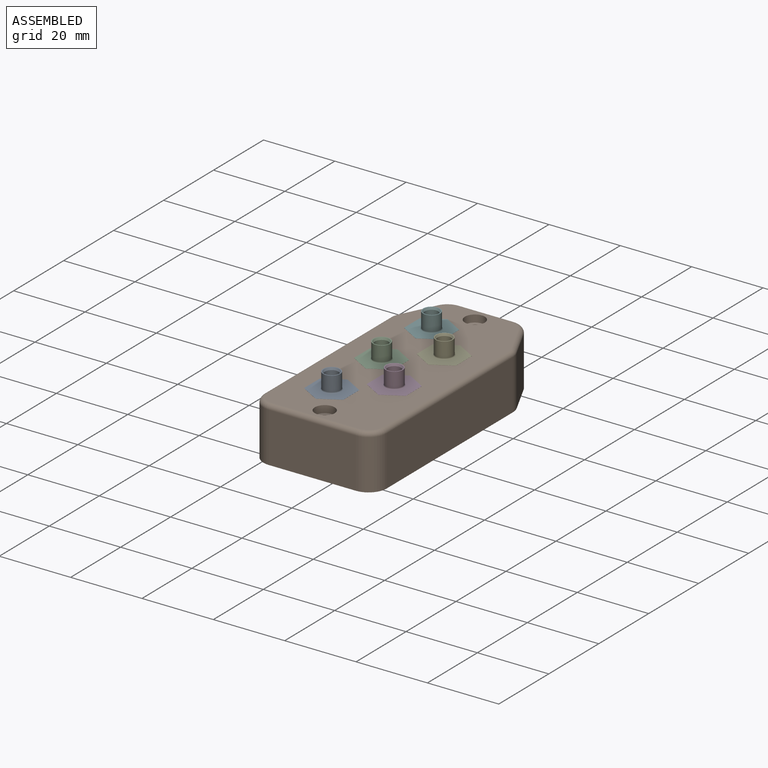
[diagram: assembled view]
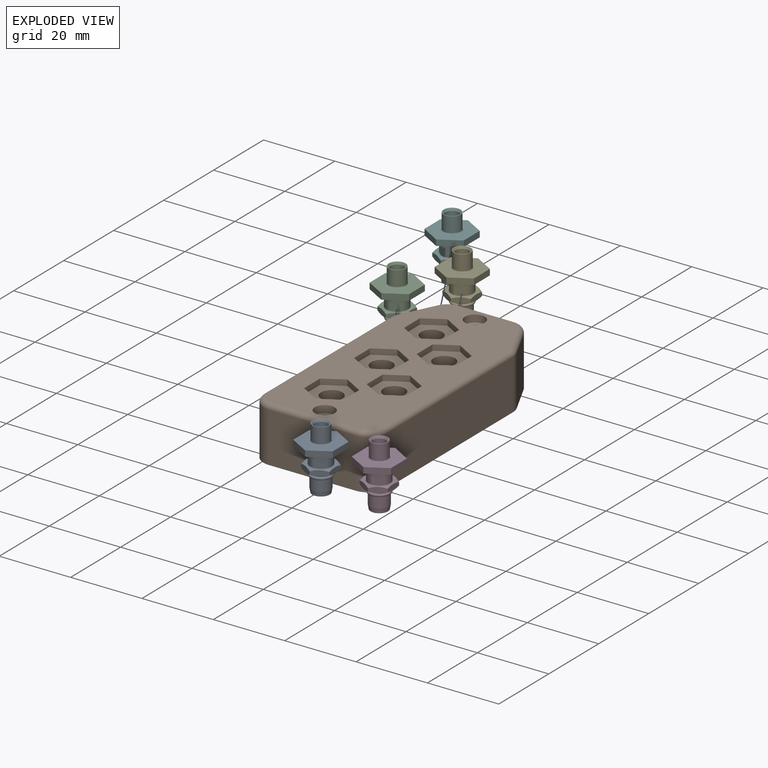
[diagram: exploded view]
GUIDED TOUR — MATED ASSEMBLY (Onshape document 641555b6fe72f07254d91e48, AutoMate assembly 641555b6fe72f07254d91e48_e81df381b4b180643ff3d9d4_b2d1536dae4446948ffe84b7_default)

This assembly has 6 components, labeled P0..P5 below (a component is one placed occurrence of a part; the same part can appear more than once), held together by 5 mates. A mate is a constraint between two components; its type names the relative motion it leaves free:
  PLANAR — leaves sliding in the plane through the listed point (normal = the listed direction) and rotation about that normal free.
Axis/direction vectors are unit vectors and 'through' points are millimeter coordinates, both in the assembly's world frame.

MATES
  1. PLANAR "Planar 5": P4 <-> P1, direction (-0.500, 0.866, 0.000) through (18.50, 43.97, 24.51) mm
  2. PLANAR "Planar 1": P5 <-> P1, direction (-0.500, 0.866, 0.000) through (7.96, 53.97, 24.51) mm
  3. PLANAR "Planar 2": P2 <-> P1, direction (-0.500, 0.866, 0.000) through (7.96, 33.97, 24.51) mm
  4. PLANAR "Planar 3": P0 <-> P1, direction (-0.500, 0.866, 0.000) through (7.96, 13.97, 24.51) mm
  5. PLANAR "Planar 4": P3 <-> P1, direction (-0.500, 0.866, 0.000) through (18.50, 23.97, 24.51) mm

ASSEMBLY ORDER
  1. P1 — the base component [order heuristic]
  2. P0 [order heuristic]
  3. P2 [order heuristic]
  4. P3 [order heuristic]
  5. P4 [order heuristic]
  6. P5 [order heuristic]
Order-tag legend:
  [order heuristic] — this assembly is geometrically interlocked (no collision-free removal order exists), so components are listed in mate-graph order; insertion feasibility is not verified.

Of the 6 components, 1 carries the full construction recipe — the FeatureScript program that regenerates the part's solid from scratch; the rest are supplied as boundary geometry only.
Each toured component is shown spotlighted twice — in the assembled view, then in the exploded view, where a leader line traces a displaced component back to its assembled socket (saturated green if recipe-attached, orange if geometry-only; every other component desaturated gray) — followed by its recipe or geometry summary and the mates that hold it.
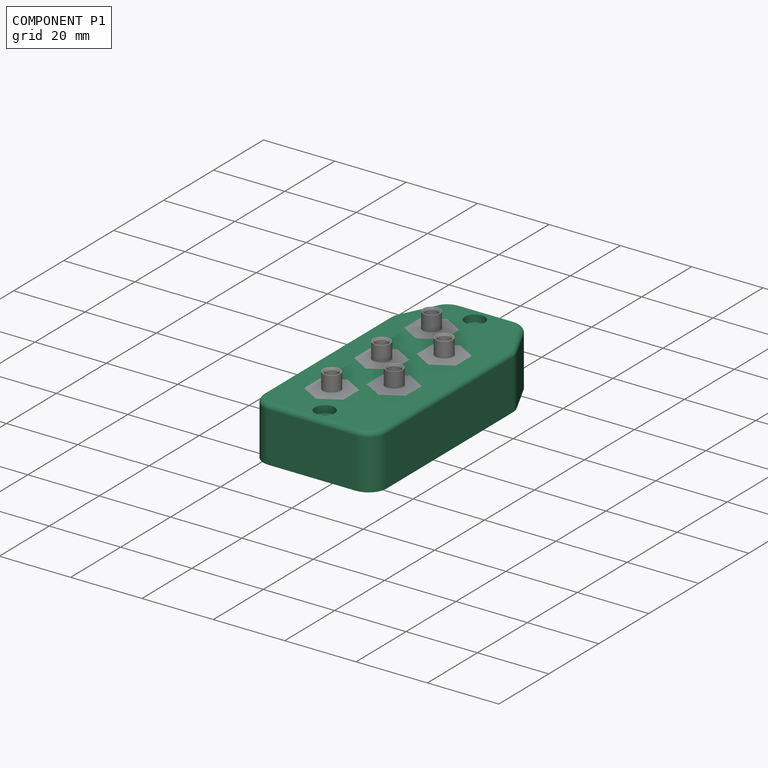
[diagram: component P1 — assembled]
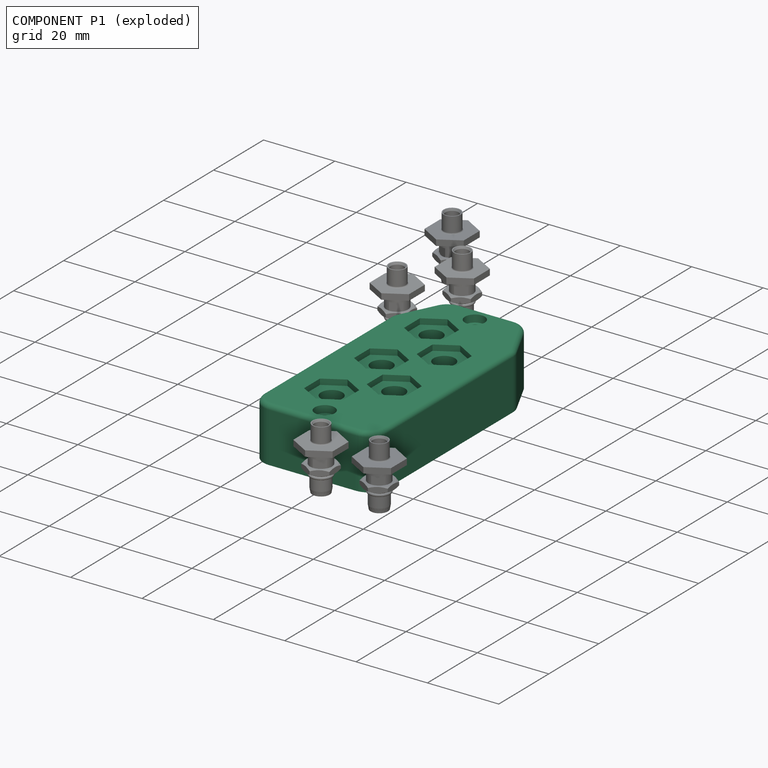
[diagram: component P1 — exploded]
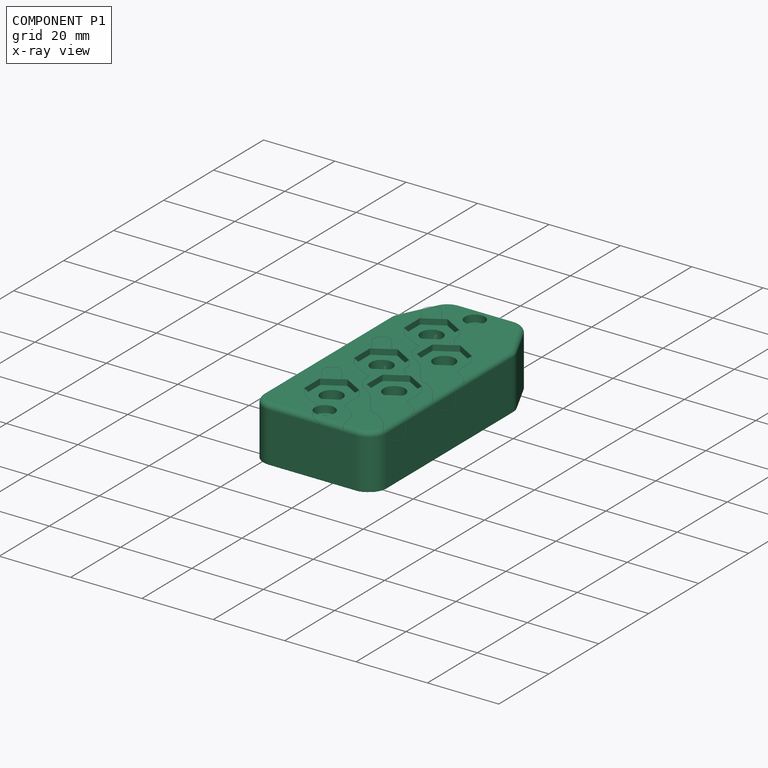
[diagram: component P1 — x-ray view]
COMPONENT P1 — recipe-attached (CADFS 00218131, mesh-verified: the recipe's output STEP matches this component's geometry to below the mesh-comparison resolution (tessellation chordal tolerance ~0.119 mm)).
Held by: PLANAR mate "Planar 5" to P4; PLANAR mate "Planar 1" to P5; PLANAR mate "Planar 2" to P2; PLANAR mate "Planar 3" to P0; PLANAR mate "Planar 4" to P3.
Construction recipe (FeatureScript — the CAD program that rebuilds this solid; sketch coordinates are in the units given by the * unit suffixes, e.g. mm):

FeatureScript 1511;
import(path : "onshape/std/geometry.fs", version : "1511.0");
import(path : "onshape/std/common.fs", version : "1511.0");
const mm = millimeter;
const VERTEX = EntityType.VERTEX;
const EDGE = EntityType.EDGE;
const FACE = EntityType.FACE;
const BODY = EntityType.BODY;
function v(x, y){return vector(x, y);}
function OD(order){return orderDisambiguation(order);}
function OSD(set){return originalSetDisambiguation(set);}
function TD(topology){return topologyDisambiguation(topology);}
function TDD(query){return trueDependencyDisambiguation(query);}
function sQuery(a, b, c) {return sketchEntityQuery(a, b, c);}

annotation { "Feature Type Name" : "Feature", "Feature Type Description" : "" }
export const myFeature = defineFeature(function(context is Context, id is Id, definition is map)
    precondition{}
    {
        {
            var Q0;
            Q0=qCreatedBy(makeId("Top.planeOp"),FACE);
            var sketch = newSketch(context, id + "F0", { "sketchPlane" : qUnion([Q0])});
            skLineSegment(sketch, "E0", {"start": v(0, 0) * mm, "end": v(0, 56.78) * mm});
            skLineSegment(sketch, "E1", {"start": v(0, 56.78) * mm, "end": v(6.48, 70) * mm});
            skLineSegment(sketch, "E2", {"start": v(6.48, 70) * mm, "end": v(28.07, 70) * mm});
            skLineSegment(sketch, "E3", {"start": v(28.07, 70) * mm, "end": v(34.54, 56.78) * mm});
            skLineSegment(sketch, "E4", {"start": v(34.54, 56.78) * mm, "end": v(34.54, 0) * mm});
            skLineSegment(sketch, "E5", {"start": v(34.54, 0) * mm, "end": v(0, 0) * mm});
            skLineSegment(sketch, "E6", {"start": v(17.27, 70) * mm, "end": v(17.27, 0) * mm, "construction": true});
            skCircle(sketch, "E7", {"center": v(17.27, 65.05) * mm, "radius": 1.78 * mm});
            skCircle(sketch, "E8", {"center": v(17.27, 4.95) * mm, "radius": 1.78 * mm});
            skSolve(sketch);
        }
        {
            var Q0;
            Q0=makeQuery(id+"F0.imprint","IMPRINT",FACE,{"disambiguationData":[TD([[makeQuery(id+"F0.imprint","IMPRINT",EDGE,{"derivedFrom":sQuery(id+"F0.wireOp",EDGE,"E0")}),-1.0]])]});
            extrude(context, id + "F1", {"entities" : qUnion([Q0]), "depth" : 15.24 * mm});
        }
        {
            var Q0;
            Q0=makeQuery(id+"F1.opExtrude","CAP_FACE",FACE,{"disambiguationData":[OSD([sQuery(id+"F0.wireOp",EDGE,"E0"),sQuery(id+"F0.wireOp",EDGE,"E1"),sQuery(id+"F0.wireOp",EDGE,"E2"),sQuery(id+"F0.wireOp",EDGE,"E3"),sQuery(id+"F0.wireOp",EDGE,"E4"),sQuery(id+"F0.wireOp",EDGE,"E5"),sQuery(id+"F0.wireOp",EDGE,"E7"),sQuery(id+"F0.wireOp",EDGE,"E8")])],"isStart":true});
            var sketch = newSketch(context, id + "F2", { "sketchPlane" : qUnion([Q0])});
            skLineSegment(sketch, "E9.0", {"start": v(32.26, -56.25) * mm, "end": v(32.26, -2.29) * mm});
            skLineSegment(sketch, "E9.1", {"start": v(2.29, -2.29) * mm, "end": v(2.29, -56.25) * mm});
            skLineSegment(sketch, "E9.2", {"start": v(2.29, -56.25) * mm, "end": v(7.9, -67.71) * mm});
            skLineSegment(sketch, "E9.3", {"start": v(32.26, -2.29) * mm, "end": v(22.99, -2.29) * mm});
            skLineSegment(sketch, "E9.4", {"start": v(7.9, -67.71) * mm, "end": v(11.56, -67.71) * mm});
            skLineSegment(sketch, "E9.5", {"start": v(26.64, -67.71) * mm, "end": v(32.26, -56.25) * mm});
            skArc(sketch, "E10.0", {"start": v(14.22, -4.95) * mm, "mid": v(17.27, -8) * mm, "end": v(20.32, -4.95) * mm});
            skArc(sketch, "E11.0", {"start": v(20.32, -65.05) * mm, "mid": v(17.27, -62) * mm, "end": v(14.22, -65.05) * mm});
            skArc(sketch, "E12", {"start": v(14.22, -4.95) * mm, "mid": v(13.44, -3.07) * mm, "end": v(11.56, -2.29) * mm});
            skArc(sketch, "E13", {"start": v(22.99, -2.29) * mm, "mid": v(21.1, -3.07) * mm, "end": v(20.32, -4.95) * mm});
            skArc(sketch, "E14", {"start": v(20.32, -65.05) * mm, "mid": v(21.1, -66.93) * mm, "end": v(22.99, -67.71) * mm});
            skArc(sketch, "E15", {"start": v(11.56, -67.71) * mm, "mid": v(13.44, -66.93) * mm, "end": v(14.22, -65.05) * mm});
            skLineSegment(sketch, "E16.trimOffspring", {"start": v(11.56, -2.29) * mm, "end": v(2.29, -2.29) * mm});
            skPoint(sketch, "E17.start.orphan", {"position": v(14.22, -2.29) * mm});
            skPoint(sketch, "E18.trimOffspring.start.orphan", {"position": v(20.32, -2.29) * mm});
            skLineSegment(sketch, "E19.trimOffspring", {"start": v(22.99, -67.71) * mm, "end": v(26.64, -67.71) * mm});
            skPoint(sketch, "E20.orphan", {"position": v(14.22, -67.71) * mm});
            skPoint(sketch, "E21.orphan", {"position": v(18.75, -67.71) * mm});
            skPoint(sketch, "E22.start.orphan", {"position": v(20.32, -67.71) * mm});
            skSolve(sketch);
        }
        {
            var Q0;
            Q0 = qSketchRegion(id + "F2", true);
            extrude(context, id + "F3", {"entities" : qUnion([Q0]), "operationType" : NewBodyOperationType.REMOVE, "oppositeDirection" : true, "depth" : 10.92 * mm});
        }
        {
            var Q0;
            Q0=makeQuery(id+"F1.opExtrude","SWEPT_EDGE",EDGE,{"disambiguationData":[OSD([sQuery(id+"F0.wireOp",EDGE,"E1"),sQuery(id+"F0.wireOp",EDGE,"E2")])]});
            var Q1;
            Q1=makeQuery(id+"F1.opExtrude","SWEPT_EDGE",EDGE,{"disambiguationData":[OSD([sQuery(id+"F0.wireOp",EDGE,"E2"),sQuery(id+"F0.wireOp",EDGE,"E3")])]});
            var Q2;
            Q2=makeQuery(id+"F1.opExtrude","SWEPT_EDGE",EDGE,{"disambiguationData":[OSD([sQuery(id+"F0.wireOp",EDGE,"E3"),sQuery(id+"F0.wireOp",EDGE,"E4")])]});
            var Q3;
            Q3=makeQuery(id+"F1.opExtrude","SWEPT_EDGE",EDGE,{"disambiguationData":[OSD([sQuery(id+"F0.wireOp",EDGE,"E4"),sQuery(id+"F0.wireOp",EDGE,"E5")])]});
            var Q4;
            Q4=makeQuery(id+"F1.opExtrude","SWEPT_EDGE",EDGE,{"disambiguationData":[OSD([sQuery(id+"F0.wireOp",EDGE,"E0"),sQuery(id+"F0.wireOp",EDGE,"E5")])]});
            var Q5;
            Q5=makeQuery(id+"F1.opExtrude","SWEPT_EDGE",EDGE,{"disambiguationData":[OSD([sQuery(id+"F0.wireOp",EDGE,"E0"),sQuery(id+"F0.wireOp",EDGE,"E1")])]});
            fillet(context, id + "F4", {"entities" : qUnion([Q0, Q1, Q2, Q3, Q4, Q5]), "radius" : 5.08 * mm, "tangentPropagation" : true, "allowEdgeOverflow" : false});
        }
        {
            var Q0;
            {var subQ0=sQuery(id+"F0.wireOp",EDGE,"E5");var subQ1=sQuery(id+"F0.wireOp",EDGE,"E0");Q0=makeQuery(id+"F4.opFillet","BLEND_EDGE",EDGE,{"blendedFrom":[makeQuery(id+"F1.opExtrude","SWEPT_EDGE",EDGE,{"disambiguationData":[OSD([subQ1,subQ0])]}),makeQuery(id+"F1.opExtrude","CAP_FACE",FACE,{"disambiguationData":[OSD([subQ1,sQuery(id+"F0.wireOp",EDGE,"E1"),sQuery(id+"F0.wireOp",EDGE,"E2"),sQuery(id+"F0.wireOp",EDGE,"E3"),sQuery(id+"F0.wireOp",EDGE,"E4"),subQ0,sQuery(id+"F0.wireOp",EDGE,"E7"),sQuery(id+"F0.wireOp",EDGE,"E8")])],"isStart":false})],"blendedInto":[makeQuery(id+"F1.opExtrude","CAP_FACE",FACE,{"disambiguationData":[OSD([subQ1,sQuery(id+"F0.wireOp",EDGE,"E1"),sQuery(id+"F0.wireOp",EDGE,"E2"),sQuery(id+"F0.wireOp",EDGE,"E3"),sQuery(id+"F0.wireOp",EDGE,"E4"),subQ0,sQuery(id+"F0.wireOp",EDGE,"E7"),sQuery(id+"F0.wireOp",EDGE,"E8")])],"isStart":false})]});}
            var Q1;
            {var subQ0=sQuery(id+"F0.wireOp",EDGE,"E5");var subQ1=sQuery(id+"F0.wireOp",EDGE,"E4");Q1=makeQuery(id+"F4.opFillet","BLEND_EDGE",EDGE,{"blendedFrom":[makeQuery(id+"F1.opExtrude","SWEPT_EDGE",EDGE,{"disambiguationData":[OSD([subQ1,subQ0])]}),makeQuery(id+"F1.opExtrude","CAP_FACE",FACE,{"disambiguationData":[OSD([sQuery(id+"F0.wireOp",EDGE,"E0"),sQuery(id+"F0.wireOp",EDGE,"E1"),sQuery(id+"F0.wireOp",EDGE,"E2"),sQuery(id+"F0.wireOp",EDGE,"E3"),subQ1,subQ0,sQuery(id+"F0.wireOp",EDGE,"E7"),sQuery(id+"F0.wireOp",EDGE,"E8")])],"isStart":false})],"blendedInto":[makeQuery(id+"F1.opExtrude","CAP_FACE",FACE,{"disambiguationData":[OSD([sQuery(id+"F0.wireOp",EDGE,"E0"),sQuery(id+"F0.wireOp",EDGE,"E1"),sQuery(id+"F0.wireOp",EDGE,"E2"),sQuery(id+"F0.wireOp",EDGE,"E3"),subQ1,subQ0,sQuery(id+"F0.wireOp",EDGE,"E7"),sQuery(id+"F0.wireOp",EDGE,"E8")])],"isStart":false})]});}
            var Q2;
            {var subQ0=sQuery(id+"F0.wireOp",EDGE,"E4");var subQ1=sQuery(id+"F0.wireOp",EDGE,"E3");Q2=makeQuery(id+"F4.opFillet","BLEND_EDGE",EDGE,{"blendedFrom":[makeQuery(id+"F1.opExtrude","SWEPT_EDGE",EDGE,{"disambiguationData":[OSD([subQ1,subQ0])]}),makeQuery(id+"F1.opExtrude","CAP_FACE",FACE,{"disambiguationData":[OSD([sQuery(id+"F0.wireOp",EDGE,"E0"),sQuery(id+"F0.wireOp",EDGE,"E1"),sQuery(id+"F0.wireOp",EDGE,"E2"),subQ1,subQ0,sQuery(id+"F0.wireOp",EDGE,"E5"),sQuery(id+"F0.wireOp",EDGE,"E7"),sQuery(id+"F0.wireOp",EDGE,"E8")])],"isStart":false})],"blendedInto":[makeQuery(id+"F1.opExtrude","CAP_FACE",FACE,{"disambiguationData":[OSD([sQuery(id+"F0.wireOp",EDGE,"E0"),sQuery(id+"F0.wireOp",EDGE,"E1"),sQuery(id+"F0.wireOp",EDGE,"E2"),subQ1,subQ0,sQuery(id+"F0.wireOp",EDGE,"E5"),sQuery(id+"F0.wireOp",EDGE,"E7"),sQuery(id+"F0.wireOp",EDGE,"E8")])],"isStart":false})]});}
            var Q3;
            {var subQ0=sQuery(id+"F0.wireOp",EDGE,"E1");var subQ1=sQuery(id+"F0.wireOp",EDGE,"E0");Q3=makeQuery(id+"F4.opFillet","BLEND_EDGE",EDGE,{"blendedFrom":[makeQuery(id+"F1.opExtrude","SWEPT_EDGE",EDGE,{"disambiguationData":[OSD([subQ1,subQ0])]}),makeQuery(id+"F1.opExtrude","CAP_FACE",FACE,{"disambiguationData":[OSD([subQ1,subQ0,sQuery(id+"F0.wireOp",EDGE,"E2"),sQuery(id+"F0.wireOp",EDGE,"E3"),sQuery(id+"F0.wireOp",EDGE,"E4"),sQuery(id+"F0.wireOp",EDGE,"E5"),sQuery(id+"F0.wireOp",EDGE,"E7"),sQuery(id+"F0.wireOp",EDGE,"E8")])],"isStart":false})],"blendedInto":[makeQuery(id+"F1.opExtrude","CAP_FACE",FACE,{"disambiguationData":[OSD([subQ1,subQ0,sQuery(id+"F0.wireOp",EDGE,"E2"),sQuery(id+"F0.wireOp",EDGE,"E3"),sQuery(id+"F0.wireOp",EDGE,"E4"),sQuery(id+"F0.wireOp",EDGE,"E5"),sQuery(id+"F0.wireOp",EDGE,"E7"),sQuery(id+"F0.wireOp",EDGE,"E8")])],"isStart":false})]});}
            var Q4;
            {var subQ0=sQuery(id+"F0.wireOp",EDGE,"E3");var subQ1=sQuery(id+"F0.wireOp",EDGE,"E2");Q4=makeQuery(id+"F4.opFillet","BLEND_EDGE",EDGE,{"blendedFrom":[makeQuery(id+"F1.opExtrude","SWEPT_EDGE",EDGE,{"disambiguationData":[OSD([subQ1,subQ0])]}),makeQuery(id+"F1.opExtrude","CAP_FACE",FACE,{"disambiguationData":[OSD([sQuery(id+"F0.wireOp",EDGE,"E0"),sQuery(id+"F0.wireOp",EDGE,"E1"),subQ1,subQ0,sQuery(id+"F0.wireOp",EDGE,"E4"),sQuery(id+"F0.wireOp",EDGE,"E5"),sQuery(id+"F0.wireOp",EDGE,"E7"),sQuery(id+"F0.wireOp",EDGE,"E8")])],"isStart":false})],"blendedInto":[makeQuery(id+"F1.opExtrude","CAP_FACE",FACE,{"disambiguationData":[OSD([sQuery(id+"F0.wireOp",EDGE,"E0"),sQuery(id+"F0.wireOp",EDGE,"E1"),subQ1,subQ0,sQuery(id+"F0.wireOp",EDGE,"E4"),sQuery(id+"F0.wireOp",EDGE,"E5"),sQuery(id+"F0.wireOp",EDGE,"E7"),sQuery(id+"F0.wireOp",EDGE,"E8")])],"isStart":false})]});}
            var Q5;
            {var subQ0=sQuery(id+"F0.wireOp",EDGE,"E2");var subQ1=sQuery(id+"F0.wireOp",EDGE,"E1");Q5=makeQuery(id+"F4.opFillet","BLEND_EDGE",EDGE,{"blendedFrom":[makeQuery(id+"F1.opExtrude","SWEPT_EDGE",EDGE,{"disambiguationData":[OSD([subQ1,subQ0])]}),makeQuery(id+"F1.opExtrude","CAP_FACE",FACE,{"disambiguationData":[OSD([sQuery(id+"F0.wireOp",EDGE,"E0"),subQ1,subQ0,sQuery(id+"F0.wireOp",EDGE,"E3"),sQuery(id+"F0.wireOp",EDGE,"E4"),sQuery(id+"F0.wireOp",EDGE,"E5"),sQuery(id+"F0.wireOp",EDGE,"E7"),sQuery(id+"F0.wireOp",EDGE,"E8")])],"isStart":false})],"blendedInto":[makeQuery(id+"F1.opExtrude","CAP_FACE",FACE,{"disambiguationData":[OSD([sQuery(id+"F0.wireOp",EDGE,"E0"),subQ1,subQ0,sQuery(id+"F0.wireOp",EDGE,"E3"),sQuery(id+"F0.wireOp",EDGE,"E4"),sQuery(id+"F0.wireOp",EDGE,"E5"),sQuery(id+"F0.wireOp",EDGE,"E7"),sQuery(id+"F0.wireOp",EDGE,"E8")])],"isStart":false})]});}
            var Q6;
            Q6=makeQuery(id+"F1.opExtrude","CAP_EDGE",EDGE,{"disambiguationData":[OSD([sQuery(id+"F0.wireOp",EDGE,"E5")])],"isStart":false});
            var Q7;
            Q7=makeQuery(id+"F1.opExtrude","CAP_EDGE",EDGE,{"disambiguationData":[OSD([sQuery(id+"F0.wireOp",EDGE,"E0")])],"isStart":false});
            var Q8;
            Q8=makeQuery(id+"F1.opExtrude","CAP_EDGE",EDGE,{"disambiguationData":[OSD([sQuery(id+"F0.wireOp",EDGE,"E1")])],"isStart":false});
            var Q9;
            Q9=makeQuery(id+"F1.opExtrude","CAP_EDGE",EDGE,{"disambiguationData":[OSD([sQuery(id+"F0.wireOp",EDGE,"E2")])],"isStart":false});
            var Q10;
            Q10=makeQuery(id+"F1.opExtrude","CAP_EDGE",EDGE,{"disambiguationData":[OSD([sQuery(id+"F0.wireOp",EDGE,"E3")])],"isStart":false});
            var Q11;
            Q11=makeQuery(id+"F1.opExtrude","CAP_EDGE",EDGE,{"disambiguationData":[OSD([sQuery(id+"F0.wireOp",EDGE,"E4")])],"isStart":false});
            fillet(context, id + "F5", {"entities" : qUnion([Q0, Q1, Q2, Q3, Q4, Q5, Q6, Q7, Q8, Q9, Q10, Q11]), "radius" : 1.27 * mm, "tangentPropagation" : true, "allowEdgeOverflow" : false});
        }
        {
            var Q0;
            Q0=makeQuery(id+"F1.opExtrude","CAP_FACE",FACE,{"disambiguationData":[OSD([sQuery(id+"F0.wireOp",EDGE,"E0"),sQuery(id+"F0.wireOp",EDGE,"E1"),sQuery(id+"F0.wireOp",EDGE,"E2"),sQuery(id+"F0.wireOp",EDGE,"E3"),sQuery(id+"F0.wireOp",EDGE,"E4"),sQuery(id+"F0.wireOp",EDGE,"E5"),sQuery(id+"F0.wireOp",EDGE,"E7"),sQuery(id+"F0.wireOp",EDGE,"E8")])],"isStart":false});
            var sketch = newSketch(context, id + "F6", { "sketchPlane" : qUnion([Q0])});
            skCircle(sketch, "E23", {"center": v(17.27, 65.05) * mm, "radius": 2.8 * mm});
            skCircle(sketch, "E24", {"center": v(17.27, 4.95) * mm, "radius": 2.8 * mm});
            skSolve(sketch);
        }
        {
            var Q0;
            Q0 = qSketchRegion(id + "F6", true);
            extrude(context, id + "F7", {"entities" : qUnion([Q0]), "operationType" : NewBodyOperationType.REMOVE, "oppositeDirection" : true, "depth" : 2.03 * mm});
        }
        {
            var Q0;
            Q0=makeQuery(id+"F1.opExtrude","CAP_FACE",FACE,{"disambiguationData":[OSD([sQuery(id+"F0.wireOp",EDGE,"E0"),sQuery(id+"F0.wireOp",EDGE,"E1"),sQuery(id+"F0.wireOp",EDGE,"E2"),sQuery(id+"F0.wireOp",EDGE,"E3"),sQuery(id+"F0.wireOp",EDGE,"E4"),sQuery(id+"F0.wireOp",EDGE,"E5"),sQuery(id+"F0.wireOp",EDGE,"E7"),sQuery(id+"F0.wireOp",EDGE,"E8")])],"isStart":false});
            var sketch = newSketch(context, id + "F8", { "sketchPlane" : qUnion([Q0])});
            skLineSegment(sketch, "E25.0", {"start": v(6.5, 52.07) * mm, "end": v(6.5, 58.43) * mm});
            skLineSegment(sketch, "E25.1", {"start": v(6.5, 58.43) * mm, "end": v(12, 61.6) * mm});
            skLineSegment(sketch, "E25.2", {"start": v(12, 61.6) * mm, "end": v(17.5, 58.43) * mm});
            skLineSegment(sketch, "E25.3", {"start": v(17.5, 58.43) * mm, "end": v(17.5, 52.07) * mm});
            skLineSegment(sketch, "E25.4", {"start": v(17.5, 52.07) * mm, "end": v(12, 48.9) * mm});
            skLineSegment(sketch, "E25.5", {"start": v(12, 48.9) * mm, "end": v(6.5, 52.07) * mm});
            skPoint(sketch, "E25.0.midPoint", {"position": v(6.5, 55.25) * mm});
            skLineSegment(sketch, "E26.1.0.0", {"start": v(12, 41.6) * mm, "end": v(17.5, 38.43) * mm});
            skLineSegment(sketch, "E26.1.0.1", {"start": v(12, 28.9) * mm, "end": v(6.5, 32.07) * mm});
            skPoint(sketch, "E26.1.0.2", {"position": v(6.5, 35.25) * mm});
            skLineSegment(sketch, "E26.1.0.3", {"start": v(17.5, 38.43) * mm, "end": v(17.5, 32.07) * mm});
            skLineSegment(sketch, "E26.1.0.4", {"start": v(6.5, 38.43) * mm, "end": v(12, 41.6) * mm});
            skLineSegment(sketch, "E26.1.0.5", {"start": v(17.5, 32.07) * mm, "end": v(12, 28.9) * mm});
            skLineSegment(sketch, "E26.1.0.6", {"start": v(6.5, 32.07) * mm, "end": v(6.5, 38.43) * mm});
            skLineSegment(sketch, "E26.2.0.0", {"start": v(12, 21.6) * mm, "end": v(17.5, 18.43) * mm});
            skLineSegment(sketch, "E26.2.0.1", {"start": v(12, 8.9) * mm, "end": v(6.5, 12.07) * mm});
            skPoint(sketch, "E26.2.0.2", {"position": v(6.5, 15.25) * mm});
            skLineSegment(sketch, "E26.2.0.3", {"start": v(17.5, 18.43) * mm, "end": v(17.5, 12.07) * mm});
            skLineSegment(sketch, "E26.2.0.4", {"start": v(6.5, 18.43) * mm, "end": v(12, 21.6) * mm});
            skLineSegment(sketch, "E26.2.0.5", {"start": v(17.5, 12.07) * mm, "end": v(12, 8.9) * mm});
            skLineSegment(sketch, "E26.2.0.6", {"start": v(6.5, 12.07) * mm, "end": v(6.5, 18.43) * mm});
            skLineSegment(sketch, "E27.0", {"start": v(28.04, 48.43) * mm, "end": v(28.04, 42.07) * mm});
            skLineSegment(sketch, "E27.1", {"start": v(28.04, 42.07) * mm, "end": v(22.54, 38.9) * mm});
            skLineSegment(sketch, "E27.2", {"start": v(22.54, 38.9) * mm, "end": v(17.04, 42.07) * mm});
            skLineSegment(sketch, "E27.3", {"start": v(17.04, 42.07) * mm, "end": v(17.04, 48.43) * mm});
            skLineSegment(sketch, "E27.4", {"start": v(17.04, 48.43) * mm, "end": v(22.54, 51.6) * mm});
            skLineSegment(sketch, "E27.5", {"start": v(22.54, 51.6) * mm, "end": v(28.04, 48.43) * mm});
            skPoint(sketch, "E27.0.midPoint", {"position": v(28.04, 45.25) * mm});
            skLineSegment(sketch, "E28.0", {"start": v(28.04, 28.43) * mm, "end": v(28.04, 22.07) * mm});
            skLineSegment(sketch, "E28.1", {"start": v(28.04, 22.07) * mm, "end": v(22.54, 18.9) * mm});
            skLineSegment(sketch, "E28.2", {"start": v(22.54, 18.9) * mm, "end": v(17.04, 22.07) * mm});
            skLineSegment(sketch, "E28.3", {"start": v(17.04, 22.07) * mm, "end": v(17.04, 28.43) * mm});
            skLineSegment(sketch, "E28.4", {"start": v(17.04, 28.43) * mm, "end": v(22.54, 31.6) * mm});
            skLineSegment(sketch, "E28.5", {"start": v(22.54, 31.6) * mm, "end": v(28.04, 28.43) * mm});
            skPoint(sketch, "E28.0.midPoint", {"position": v(28.04, 25.25) * mm});
            skSolve(sketch);
        }
        {
            var Q0;
            Q0=makeQuery(id+"F8.imprint","IMPRINT",FACE,{"disambiguationData":[TD([[makeQuery(id+"F8.imprint","IMPRINT",EDGE,{"derivedFrom":sQuery(id+"F8.wireOp",EDGE,"E26.2.0.0")}),-1.0]])]});
            var Q1;
            Q1=makeQuery(id+"F8.imprint","IMPRINT",FACE,{"disambiguationData":[TD([[makeQuery(id+"F8.imprint","IMPRINT",EDGE,{"derivedFrom":sQuery(id+"F8.wireOp",EDGE,"E26.1.0.0")}),-1.0]])]});
            var Q2;
            Q2=makeQuery(id+"F8.imprint","IMPRINT",FACE,{"disambiguationData":[TD([[makeQuery(id+"F8.imprint","IMPRINT",EDGE,{"derivedFrom":sQuery(id+"F8.wireOp",EDGE,"E27.0")}),-1.0]])]});
            var Q3;
            Q3=makeQuery(id+"F8.imprint","IMPRINT",FACE,{"disambiguationData":[TD([[makeQuery(id+"F8.imprint","IMPRINT",EDGE,{"derivedFrom":sQuery(id+"F8.wireOp",EDGE,"E25.0")}),-1.0]])]});
            var Q4;
            Q4=makeQuery(id+"F8.imprint","IMPRINT",FACE,{"disambiguationData":[TD([[makeQuery(id+"F8.imprint","IMPRINT",EDGE,{"derivedFrom":sQuery(id+"F8.wireOp",EDGE,"E28.0")}),-1.0]])]});
            extrude(context, id + "F9", {"entities" : qUnion([Q0, Q1, Q2, Q3, Q4]), "operationType" : NewBodyOperationType.REMOVE, "oppositeDirection" : true, "depth" : 1.6 * mm});
        }
        {
            var Q0;
            Q0=makeQuery(id+"F9.boolean.opBoolean","COPY",FACE,{"derivedFrom":makeQuery(id+"F9.opExtrude","CAP_FACE",FACE,{"disambiguationData":[OSD([sQuery(id+"F8.wireOp",EDGE,"E26.1.0.0"),sQuery(id+"F8.wireOp",EDGE,"E26.1.0.1"),sQuery(id+"F8.wireOp",EDGE,"E26.1.0.3"),sQuery(id+"F8.wireOp",EDGE,"E26.1.0.4"),sQuery(id+"F8.wireOp",EDGE,"E26.1.0.5"),sQuery(id+"F8.wireOp",EDGE,"E26.1.0.6")])],"isStart":false})});
            var sketch = newSketch(context, id + "F10", { "sketchPlane" : qUnion([Q0])});
            skCircle(sketch, "E29", {"center": v(12, 35.25) * mm, "radius": 3 * mm});
            skPoint(sketch, "E29.centerSnap0", {"position": v(17.5, 35.25) * mm});
            skSolve(sketch);
        }
        {
            var Q0;
            Q0=makeQuery(id+"F10.imprint","IMPRINT",FACE,{"disambiguationData":[TD([[makeQuery(id+"F10.imprint","IMPRINT",EDGE,{"derivedFrom":sQuery(id+"F10.wireOp",EDGE,"E29")}),1.0]])]});
            extrude(context, id + "F11", {"entities" : qUnion([Q0]), "operationType" : NewBodyOperationType.REMOVE, "oppositeDirection" : true, "depth" : 25 * mm});
        }
        {
            var Q0;
            Q0=makeQuery(id+"F9.boolean.opBoolean","COPY",FACE,{"derivedFrom":makeQuery(id+"F9.opExtrude","CAP_FACE",FACE,{"disambiguationData":[OSD([sQuery(id+"F8.wireOp",EDGE,"E27.0"),sQuery(id+"F8.wireOp",EDGE,"E27.1"),sQuery(id+"F8.wireOp",EDGE,"E27.2"),sQuery(id+"F8.wireOp",EDGE,"E27.3"),sQuery(id+"F8.wireOp",EDGE,"E27.4"),sQuery(id+"F8.wireOp",EDGE,"E27.5")])],"isStart":false})});
            var sketch = newSketch(context, id + "F12", { "sketchPlane" : qUnion([Q0])});
            skCircle(sketch, "E30", {"center": v(22.54, 45.25) * mm, "radius": 3 * mm});
            skPoint(sketch, "E30.centerSnap0", {"position": v(17.04, 45.25) * mm});
            skSolve(sketch);
        }
        {
            var Q0;
            Q0=makeQuery(id+"F12.imprint","IMPRINT",FACE,{"disambiguationData":[TD([[makeQuery(id+"F12.imprint","IMPRINT",EDGE,{"derivedFrom":sQuery(id+"F12.wireOp",EDGE,"E30")}),1.0]])]});
            var Q1;
            Q1=sQuery(id+"F12.wireOp",EDGE,"E30");
            extrude(context, id + "F13", {"entities" : qUnion([Q0]), "operationType" : NewBodyOperationType.REMOVE, "surfaceEntities" : qUnion([Q1]), "oppositeDirection" : true, "depth" : 25 * mm});
        }
        {
            var Q0;
            Q0=makeQuery(id+"F9.boolean.opBoolean","COPY",FACE,{"derivedFrom":makeQuery(id+"F9.opExtrude","CAP_FACE",FACE,{"disambiguationData":[OSD([sQuery(id+"F8.wireOp",EDGE,"E28.0"),sQuery(id+"F8.wireOp",EDGE,"E28.1"),sQuery(id+"F8.wireOp",EDGE,"E28.2"),sQuery(id+"F8.wireOp",EDGE,"E28.3"),sQuery(id+"F8.wireOp",EDGE,"E28.4"),sQuery(id+"F8.wireOp",EDGE,"E28.5")])],"isStart":false})});
            var sketch = newSketch(context, id + "F14", { "sketchPlane" : qUnion([Q0])});
            skCircle(sketch, "E31", {"center": v(22.54, 25.25) * mm, "radius": 3 * mm});
            skPoint(sketch, "E31.centerSnap0", {"position": v(17.04, 25.25) * mm});
            skSolve(sketch);
        }
        {
            var Q0;
            Q0=makeQuery(id+"F14.imprint","IMPRINT",FACE,{"disambiguationData":[TD([[makeQuery(id+"F14.imprint","IMPRINT",EDGE,{"derivedFrom":sQuery(id+"F14.wireOp",EDGE,"E31")}),1.0]])]});
            extrude(context, id + "F15", {"entities" : qUnion([Q0]), "operationType" : NewBodyOperationType.REMOVE, "oppositeDirection" : true, "depth" : 25 * mm});
        }
        {
            var Q0;
            Q0=makeQuery(id+"F9.boolean.opBoolean","COPY",FACE,{"derivedFrom":makeQuery(id+"F9.opExtrude","CAP_FACE",FACE,{"disambiguationData":[OSD([sQuery(id+"F8.wireOp",EDGE,"E26.2.0.0"),sQuery(id+"F8.wireOp",EDGE,"E26.2.0.1"),sQuery(id+"F8.wireOp",EDGE,"E26.2.0.3"),sQuery(id+"F8.wireOp",EDGE,"E26.2.0.4"),sQuery(id+"F8.wireOp",EDGE,"E26.2.0.5"),sQuery(id+"F8.wireOp",EDGE,"E26.2.0.6")])],"isStart":false})});
            var sketch = newSketch(context, id + "F16", { "sketchPlane" : qUnion([Q0])});
            skCircle(sketch, "E32", {"center": v(12, 15.25) * mm, "radius": 3 * mm});
            skPoint(sketch, "E32.centerSnap0", {"position": v(17.5, 15.25) * mm});
            skSolve(sketch);
        }
        {
            var Q0;
            Q0=makeQuery(id+"F16.imprint","IMPRINT",FACE,{"disambiguationData":[TD([[makeQuery(id+"F16.imprint","IMPRINT",EDGE,{"derivedFrom":sQuery(id+"F16.wireOp",EDGE,"E32")}),1.0]])]});
            extrude(context, id + "F17", {"entities" : qUnion([Q0]), "operationType" : NewBodyOperationType.REMOVE, "oppositeDirection" : true, "depth" : 25 * mm});
        }
        {
            var Q0;
            Q0=makeQuery(id+"F9.boolean.opBoolean","COPY",FACE,{"derivedFrom":makeQuery(id+"F9.opExtrude","CAP_FACE",FACE,{"disambiguationData":[OSD([sQuery(id+"F8.wireOp",EDGE,"E25.0"),sQuery(id+"F8.wireOp",EDGE,"E25.1"),sQuery(id+"F8.wireOp",EDGE,"E25.2"),sQuery(id+"F8.wireOp",EDGE,"E25.3"),sQuery(id+"F8.wireOp",EDGE,"E25.4"),sQuery(id+"F8.wireOp",EDGE,"E25.5")])],"isStart":false})});
            var sketch = newSketch(context, id + "F18", { "sketchPlane" : qUnion([Q0])});
            skCircle(sketch, "E33", {"center": v(12, 55.25) * mm, "radius": 3 * mm});
            skPoint(sketch, "E33.centerSnap0", {"position": v(17.5, 55.25) * mm});
            skArc(sketch, "E34.0.0", {"start": v(9.65, 68.73) * mm, "mid": v(7.63, 68.15) * mm, "end": v(6.22, 66.6) * mm});
            skLineSegment(sketch, "E34.0.1", {"start": v(6.22, 66.6) * mm, "end": v(1.66, 57.27) * mm});
            skArc(sketch, "E34.0.2", {"start": v(1.66, 57.27) * mm, "mid": v(1.37, 56.46) * mm, "end": v(1.27, 55.6) * mm});
            skLineSegment(sketch, "E34.0.3", {"start": v(1.27, 55.6) * mm, "end": v(1.27, 5.08) * mm});
            skArc(sketch, "E34.0.4", {"start": v(1.27, 5.08) * mm, "mid": v(2.39, 2.39) * mm, "end": v(5.08, 1.27) * mm});
            skLineSegment(sketch, "E34.0.5", {"start": v(5.08, 1.27) * mm, "end": v(29.46, 1.27) * mm});
            skArc(sketch, "E34.0.6", {"start": v(29.46, 1.27) * mm, "mid": v(32.16, 2.39) * mm, "end": v(33.27, 5.08) * mm});
            skLineSegment(sketch, "E34.0.7", {"start": v(33.27, 5.08) * mm, "end": v(33.27, 55.6) * mm});
            skArc(sketch, "E34.0.8", {"start": v(33.27, 55.6) * mm, "mid": v(33.18, 56.46) * mm, "end": v(32.89, 57.27) * mm});
            skLineSegment(sketch, "E34.0.9", {"start": v(32.89, 57.27) * mm, "end": v(28.32, 66.6) * mm});
            skArc(sketch, "E34.0.10", {"start": v(28.32, 66.6) * mm, "mid": v(26.91, 68.15) * mm, "end": v(24.9, 68.73) * mm});
            skLineSegment(sketch, "E34.0.11", {"start": v(24.9, 68.73) * mm, "end": v(9.65, 68.73) * mm});
            skSolve(sketch);
        }
        {
            var Q0;
            Q0=makeQuery(id+"F18.imprint","IMPRINT",FACE,{"disambiguationData":[TD([[makeQuery(id+"F18.imprint","IMPRINT",EDGE,{"derivedFrom":sQuery(id+"F18.wireOp",EDGE,"E33")}),1.0]])]});
            extrude(context, id + "F19", {"entities" : qUnion([Q0]), "operationType" : NewBodyOperationType.REMOVE, "oppositeDirection" : true, "depth" : 25 * mm});
        }
    });
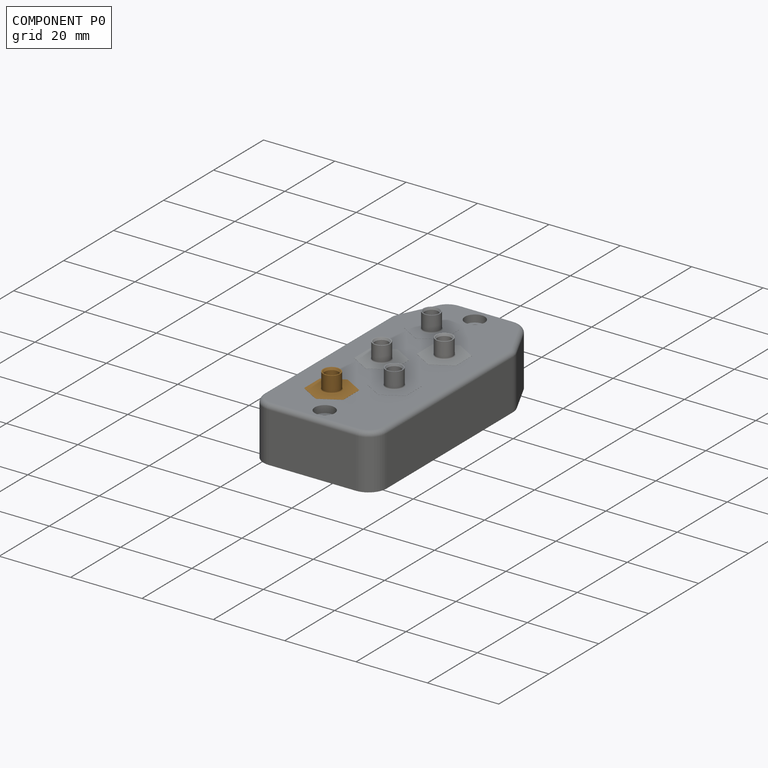
[diagram: component P0 — assembled]
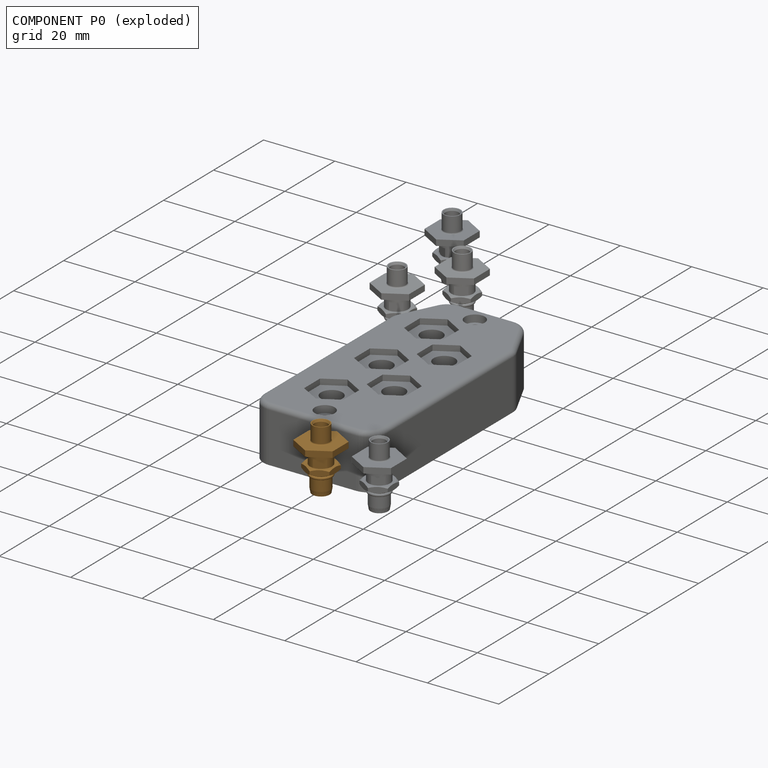
[diagram: component P0 — exploded]
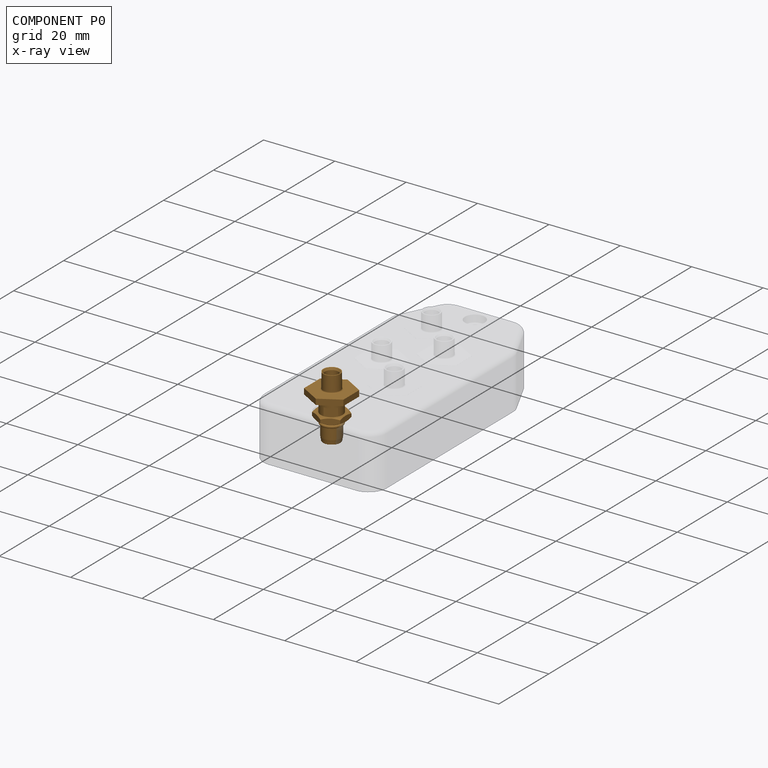
[diagram: component P0 — x-ray view]
COMPONENT P0 — geometry summary (no construction recipe available for this part):
  bounding box: 17.5 x 12.8 x 11.0 mm
  B-rep topology: 1 solid, 94 faces, 474 edges
  volume: 449 mm^3 (18% of its bounding box)
  symmetry: 2-fold rotationally symmetric about the x axis; mirror-symmetric across its y mid-plane, z mid-plane
Held by: PLANAR mate "Planar 3" to P1.
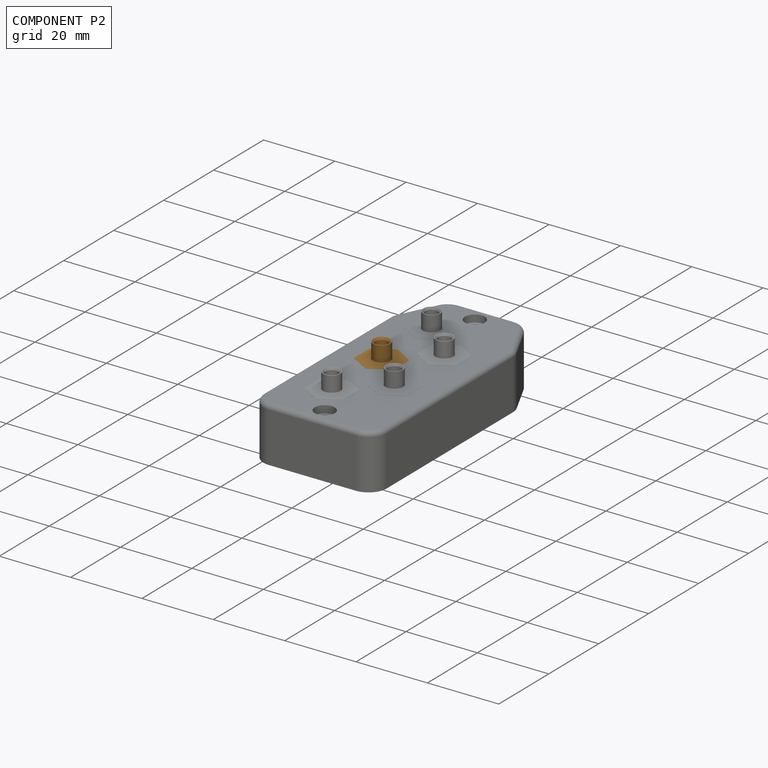
[diagram: component P2 — assembled]
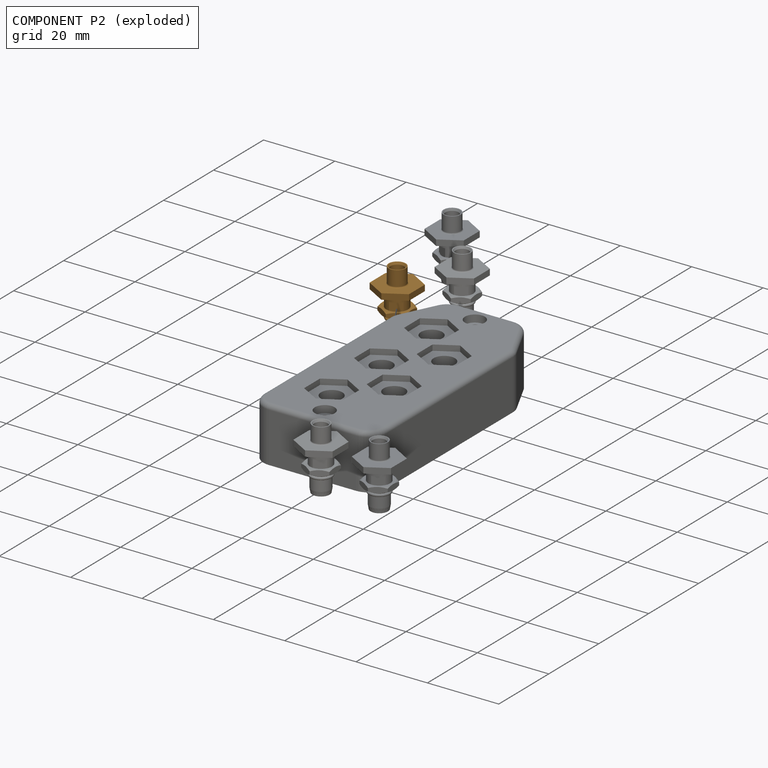
[diagram: component P2 — exploded]
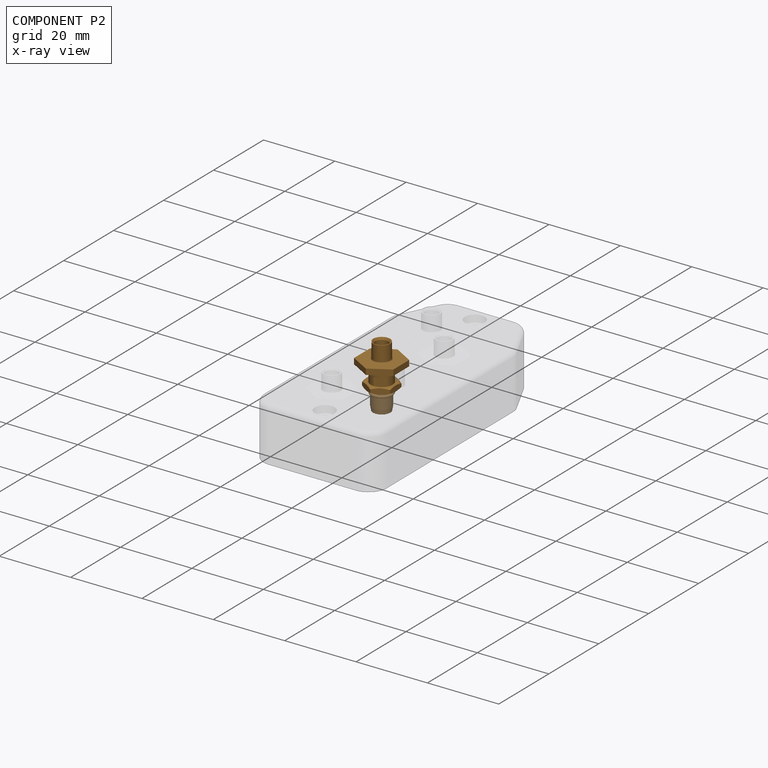
[diagram: component P2 — x-ray view]
COMPONENT P2 — geometry summary (no construction recipe available for this part):
  bounding box: 17.5 x 12.8 x 11.0 mm
  B-rep topology: 1 solid, 94 faces, 474 edges
  volume: 449 mm^3 (18% of its bounding box)
  symmetry: 2-fold rotationally symmetric about the x axis; mirror-symmetric across its y mid-plane, z mid-plane
Held by: PLANAR mate "Planar 2" to P1.
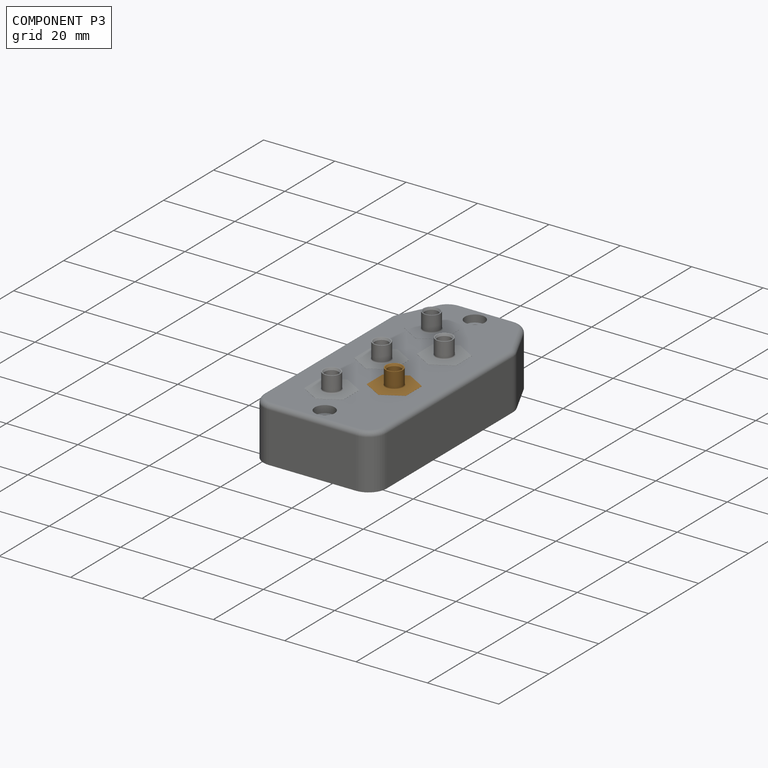
[diagram: component P3 — assembled]
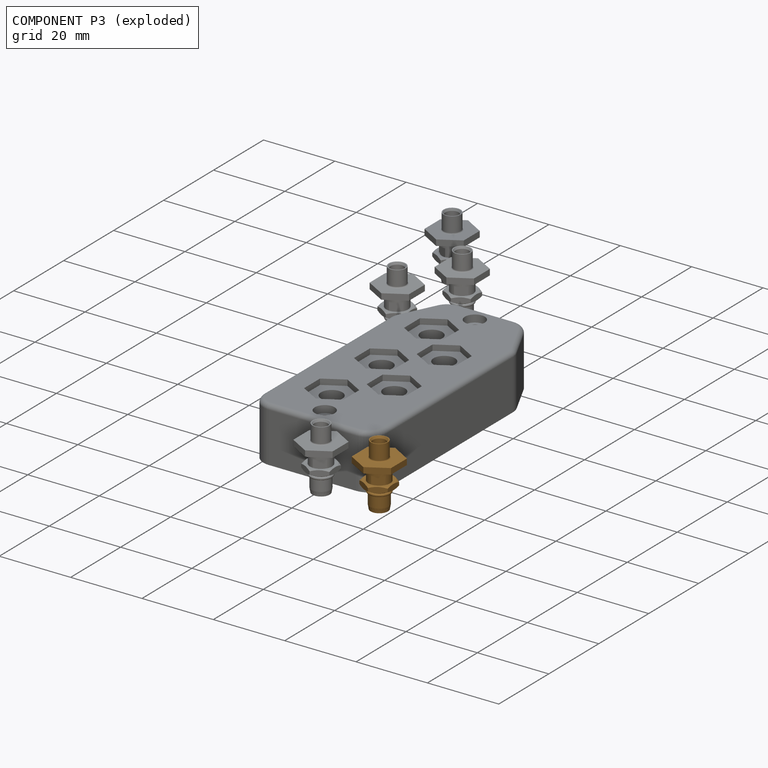
[diagram: component P3 — exploded]
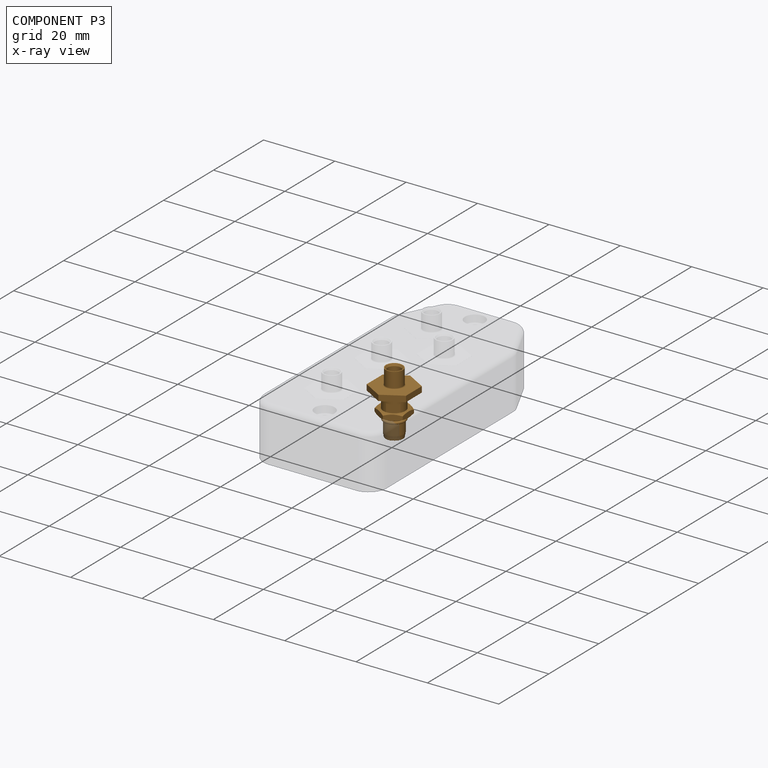
[diagram: component P3 — x-ray view]
COMPONENT P3 — geometry summary (no construction recipe available for this part):
  bounding box: 17.5 x 12.8 x 11.0 mm
  B-rep topology: 1 solid, 94 faces, 474 edges
  volume: 449 mm^3 (18% of its bounding box)
  symmetry: 2-fold rotationally symmetric about the x axis; mirror-symmetric across its y mid-plane, z mid-plane
Held by: PLANAR mate "Planar 4" to P1.
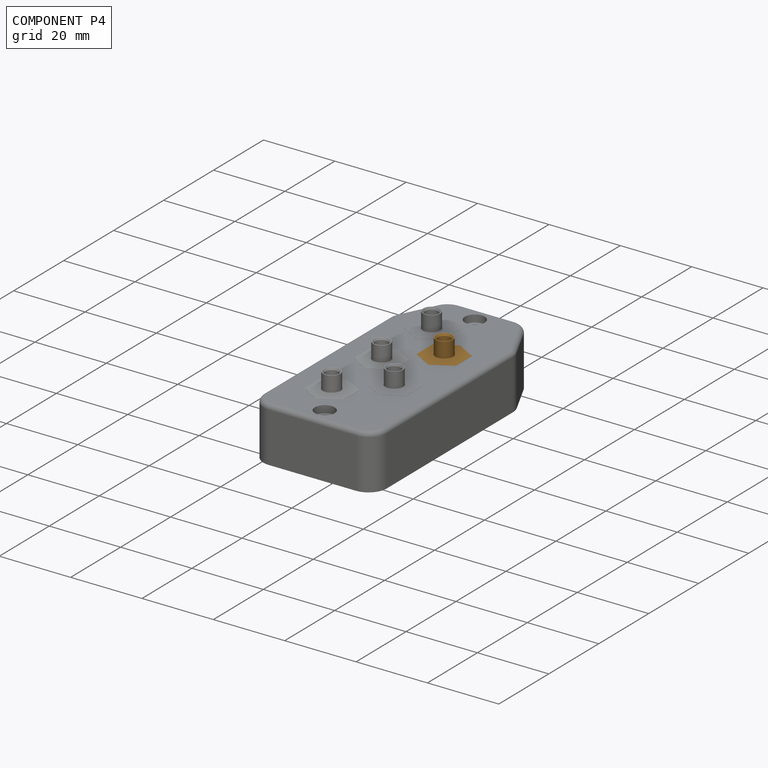
[diagram: component P4 — assembled]
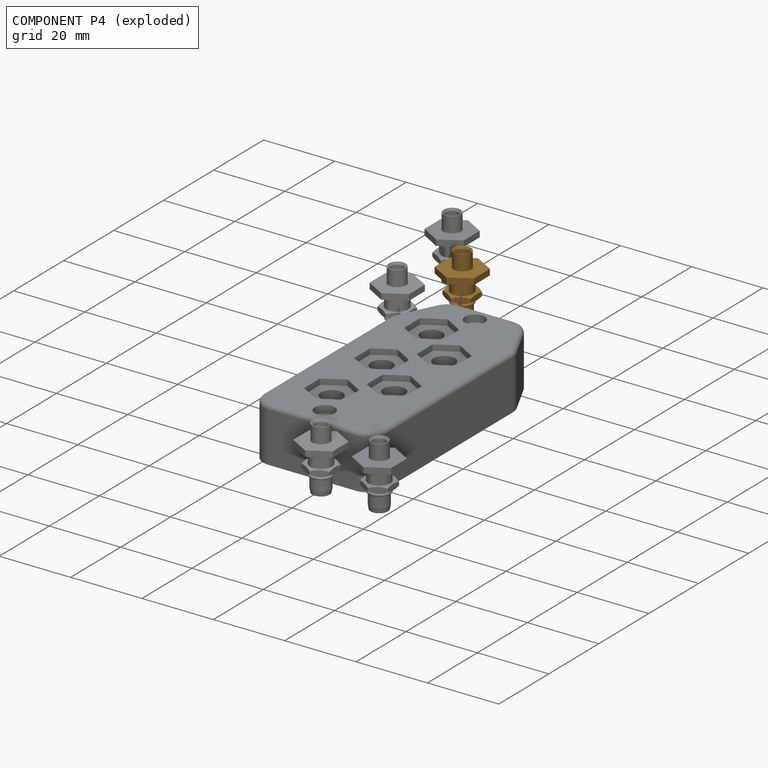
[diagram: component P4 — exploded]
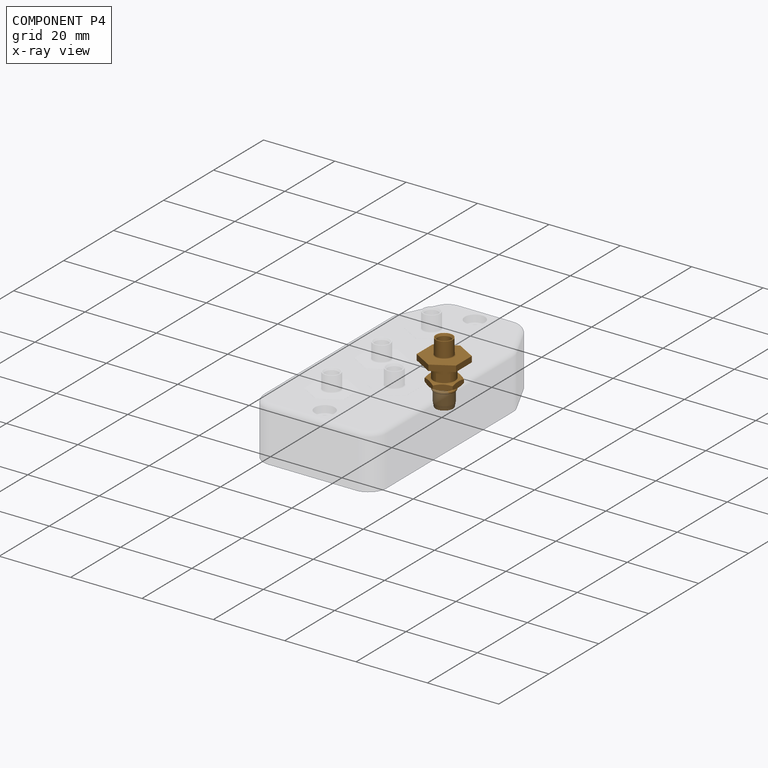
[diagram: component P4 — x-ray view]
COMPONENT P4 — geometry summary (no construction recipe available for this part):
  bounding box: 17.5 x 12.8 x 11.0 mm
  B-rep topology: 1 solid, 94 faces, 474 edges
  volume: 449 mm^3 (18% of its bounding box)
  symmetry: 2-fold rotationally symmetric about the x axis; mirror-symmetric across its y mid-plane, z mid-plane
Held by: PLANAR mate "Planar 5" to P1.
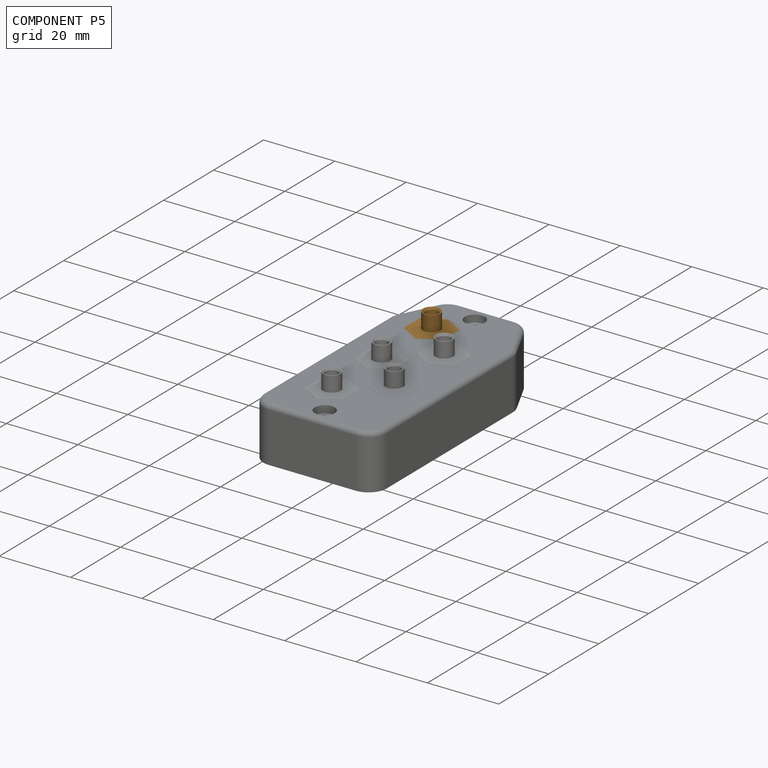
[diagram: component P5 — assembled]
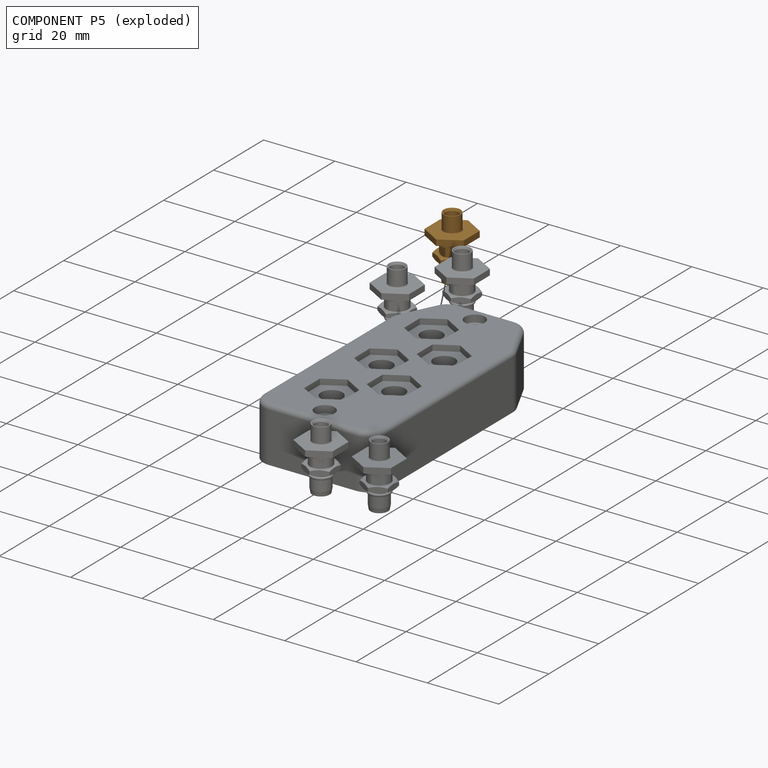
[diagram: component P5 — exploded]
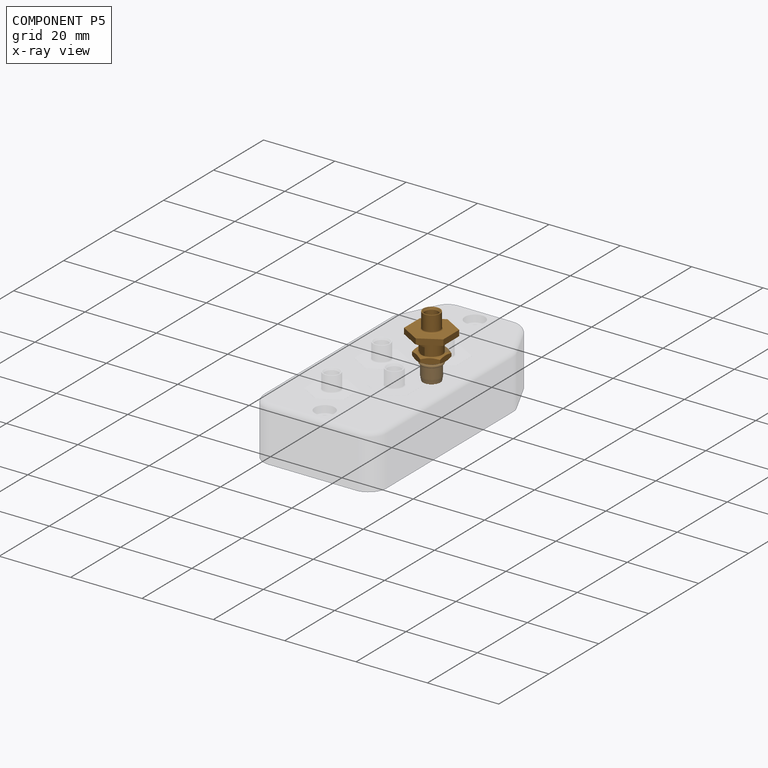
[diagram: component P5 — x-ray view]
COMPONENT P5 — geometry summary (no construction recipe available for this part):
  bounding box: 17.5 x 12.8 x 11.0 mm
  B-rep topology: 1 solid, 94 faces, 474 edges
  volume: 449 mm^3 (18% of its bounding box)
  symmetry: 2-fold rotationally symmetric about the x axis; mirror-symmetric across its y mid-plane, z mid-plane
Held by: PLANAR mate "Planar 1" to P1.
PROVENANCE & LICENSES
Assembly (occurrences, transforms, mates, per-part STEP geometry): AutoMate dataset, Zenodo record 7776208, CC0.
Construction recipes: CADFS (HuggingFace VladPyatov/CADFS, CC-BY-4.0, layered over the ABC dataset), FeatureScript reconstruction programs keyed by ABC model id.
Join: ABC meta listings map ABC model id -> Onshape documentId; within a shared document, parts are matched by geometric signature (bounding-box dims + volume at 0.1% relative tolerance, exact B-rep face/solid counts).
Verification: 1 of this assembly's 6 components carries a recipe attachment, and every attachment is mesh-verified: the CADFS STEP and the AutoMate member STEP were compared as meshes in their shared local frame (symmetric sampled-point-to-mesh distance); worst across the 1 attachment: below the mesh-comparison resolution (tessellation chordal tolerance ~0.119 mm) on a 80 mm part.
Renders: orthographic iso camera (az 35 / el 25); the floor grid conveys scale (grid pitch printed in each image; no ruler). In the exploded view each component is displaced by its stored offset vector: the offsets alone carry the explosion direction (mate normal/axis signs are not orientation cues and do not encode it), and separation distances are assigned per mate-chain, not proportionally to assembly-order depth.
